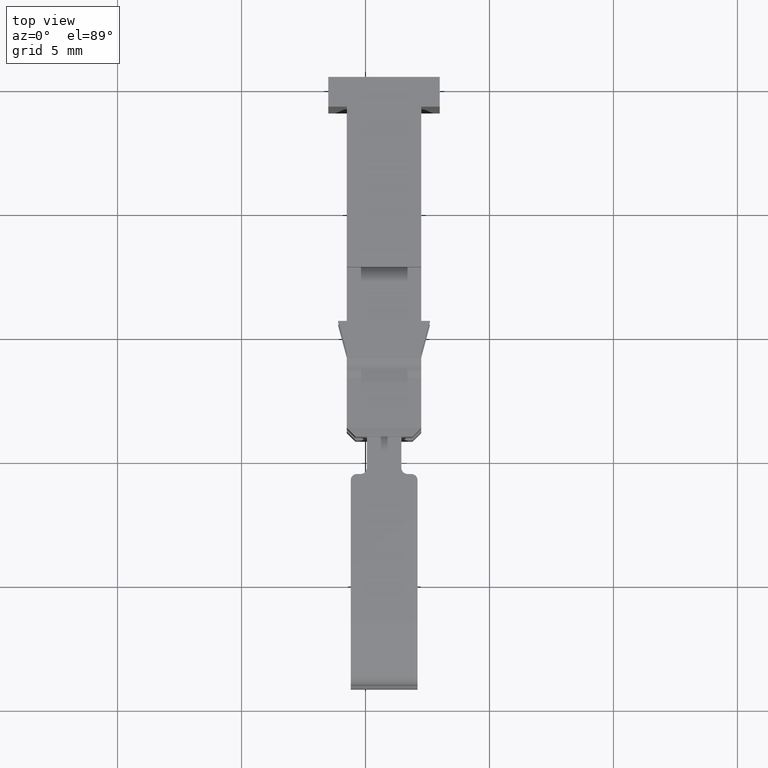
[diagram: clean part render]
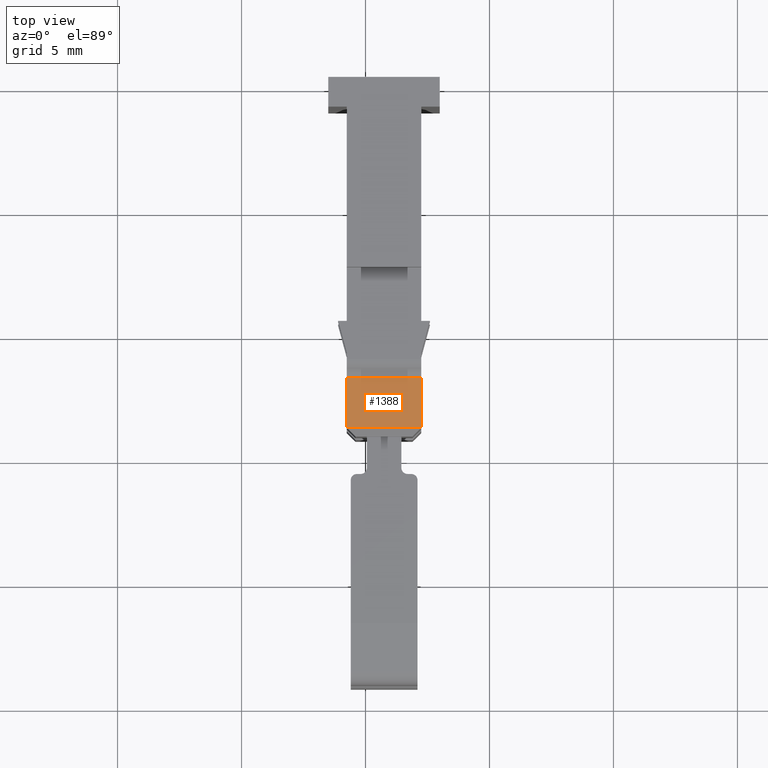
[diagram: same view with one face highlighted and labeled with its STEP entity id]
A machine part, top view. The second image highlights one B-rep face of the part: STEP entity #1388.
In plain terms, the highlighted planar face has unit normal (0, 0, -1).
Its self-contained STEP definition (entity closure, byte-faithful):
#2 = CARTESIAN_POINT ( 'NONE',  ( 112.2452529172786200, 249.5101602476015000, 171.5398226793865000 ) ) ;
#7 = LINE ( 'NONE', #2, #1644 ) ;
#18 = DIRECTION ( 'NONE',  ( 2.643655590711540000E-014, -1.000000000000000000, -0.0000000000000000000 ) ) ;
#20 = LINE ( 'NONE', #41, #1629 ) ;
#35 = DIRECTION ( 'NONE',  ( 1.000000000000000000, -3.964752840964922800E-028, 7.193572994222620300E-015 ) ) ;
#41 = CARTESIAN_POINT ( 'NONE',  ( 112.2452529172789900, 248.1959466852284800, 171.5398226793865000 ) ) ;
#331 = DIRECTION ( 'NONE',  ( 0.0000000000000000000, 1.000000000000000000, 5.511520970384449500E-014 ) ) ;
#339 = LINE ( 'NONE', #355, #1727 ) ;
#355 = CARTESIAN_POINT ( 'NONE',  ( 109.2452529172788200, 248.1959466852285100, 171.5398226793864800 ) ) ;
#655 = CARTESIAN_POINT ( 'NONE',  ( 109.2452529172787300, 248.1959466852284800, 171.5398226793864800 ) ) ;
#765 = CARTESIAN_POINT ( 'NONE',  ( 112.2452529172789900, 248.1959466852285100, 171.5398226793865000 ) ) ;
#772 = PLANE ( 'NONE',  #1844 ) ;
#779 = DIRECTION ( 'NONE',  ( 7.193572994222620300E-015, 5.511520970384449500E-014, -1.000000000000000000 ) ) ;
#783 = DIRECTION ( 'NONE',  ( 0.0000000000000000000, 1.000000000000000000, 5.511520970384449500E-014 ) ) ;
#802 = FACE_OUTER_BOUND ( 'NONE', #2198, .T. ) ;
#952 = CARTESIAN_POINT ( 'NONE',  ( 109.2452529172787800, 246.1815789080019100, 171.5398226793864500 ) ) ;
#956 = CARTESIAN_POINT ( 'NONE',  ( 112.2452529172787300, 246.1815789080018800, 171.5398226793864800 ) ) ;
#989 = CARTESIAN_POINT ( 'NONE',  ( 112.2452529172786300, 248.1959466852284800, 171.5398226793865000 ) ) ;
#1038 = CARTESIAN_POINT ( 'NONE',  ( 112.2452529172789900, 246.1815789080018800, 171.5398226793863900 ) ) ;
#1061 = DIRECTION ( 'NONE',  ( -1.000000000000000000, 3.964752840964922800E-028, -7.193572994222620300E-015 ) ) ;
#1065 = LINE ( 'NONE', #1038, #1600 ) ;
#1171 = EDGE_CURVE ( 'NONE', #2566, #2551, #1065, .T. ) ;
#1187 = EDGE_CURVE ( 'NONE', #2609, #2566, #7, .T. ) ;
#1195 = EDGE_CURVE ( 'NONE', #2684, #2609, #20, .T. ) ;
#1287 = EDGE_CURVE ( 'NONE', #2551, #2684, #339, .T. ) ;
#1388 = ADVANCED_FACE ( 'NONE', ( #802 ), #772, .F. ) ;
#1600 = VECTOR ( 'NONE', #1061, 1000.000000000000000 ) ;
#1629 = VECTOR ( 'NONE', #35, 1000.000000000000000 ) ;
#1644 = VECTOR ( 'NONE', #18, 1000.000000000000000 ) ;
#1727 = VECTOR ( 'NONE', #331, 1000.000000000000000 ) ;
#1844 = AXIS2_PLACEMENT_3D ( 'NONE', #765, #779, #783 ) ;
#2094 = ORIENTED_EDGE ( 'NONE', *, *, #1187, .F. ) ;
#2156 = ORIENTED_EDGE ( 'NONE', *, *, #1195, .F. ) ;
#2159 = ORIENTED_EDGE ( 'NONE', *, *, #1287, .F. ) ;
#2180 = ORIENTED_EDGE ( 'NONE', *, *, #1171, .F. ) ;
#2198 = EDGE_LOOP ( 'NONE', ( #2156, #2159, #2180, #2094 ) ) ;
#2551 = VERTEX_POINT ( 'NONE', #952 ) ;
#2566 = VERTEX_POINT ( 'NONE', #956 ) ;
#2609 = VERTEX_POINT ( 'NONE', #989 ) ;
#2684 = VERTEX_POINT ( 'NONE', #655 ) ;